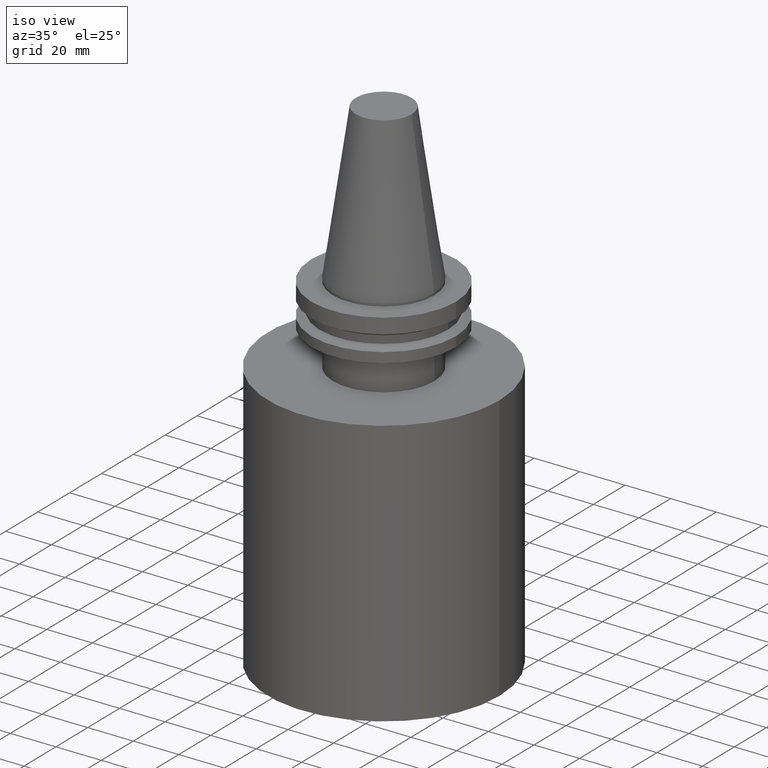
[diagram: clean part render]
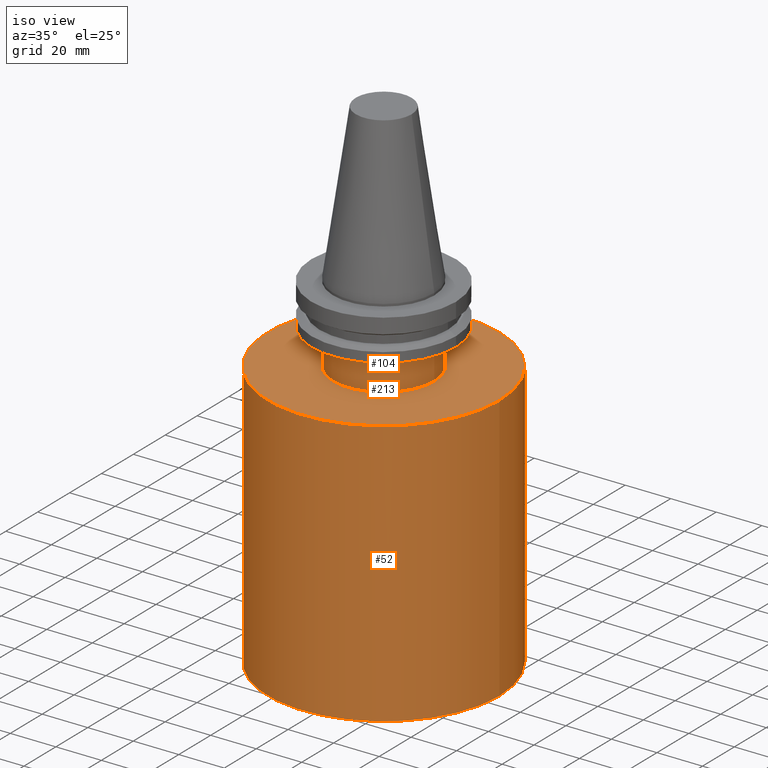
[diagram: same view with one multi-face feature highlighted, each face labeled with its STEP entity id]
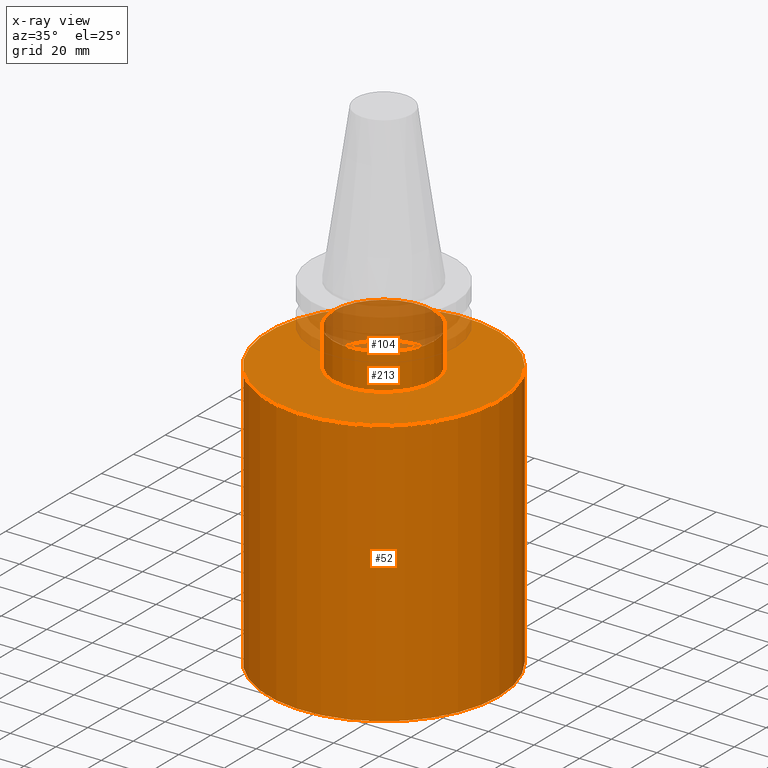
[diagram: x-ray of the same camera — body ghosted, the whole feature saturated]
A machine part, iso view. The highlighted faces form ONE feature: a stepped (counterbored) hole: 2 coaxial cylindrical walls of radii 22.225 -> 50.8 mm joined by 1 annular planar shoulder face(s). The faces share edges in the B-rep.
The next image is the same camera in x-ray: the body ghosted and the whole hole feature saturated, so the bore chain is visible through the body.
Their STEP definitions:
[1] entity #52 (Cylinder):
#20 = DIRECTION ( 'NONE',  ( 1.000000000000000000, 0.000000000000000000, 0.000000000000000000 ) ) ;
#38 = CYLINDRICAL_SURFACE ( 'NONE', #169, 50.79999999999999005 ) ;
#52 = ADVANCED_FACE ( 'NONE', ( #193, #318 ), #38, .T. ) ;
#65 = CIRCLE ( 'NONE', #297, 50.79999999999998295 ) ;
#84 = DIRECTION ( 'NONE',  ( 1.000000000000000000, 0.000000000000000000, 0.000000000000000000 ) ) ;
#86 = CIRCLE ( 'NONE', #242, 50.79999999999999716 ) ;
#96 = EDGE_LOOP ( 'NONE', ( #370 ) ) ;
#98 = ORIENTED_EDGE ( 'NONE', *, *, #326, .T. ) ;
#99 = CARTESIAN_POINT ( 'NONE',  ( 50.79999999999999716, 0.000000000000000000, -152.4000000000000057 ) ) ;
#102 = VERTEX_POINT ( 'NONE', #261 ) ;
#119 = DIRECTION ( 'NONE',  ( -0.000000000000000000, -0.000000000000000000, 1.000000000000000000 ) ) ;
#151 = CARTESIAN_POINT ( 'NONE',  ( 0.000000000000000000, 0.000000000000000000, -152.4000000000000057 ) ) ;
#160 = CARTESIAN_POINT ( 'NONE',  ( 0.000000000000000000, 0.000000000000000000, 0.000000000000000000 ) ) ;
#169 = AXIS2_PLACEMENT_3D ( 'NONE', #160, #292, #321 ) ;
#184 = VERTEX_POINT ( 'NONE', #99 ) ;
#193 = FACE_OUTER_BOUND ( 'NONE', #96, .T. ) ;
#242 = AXIS2_PLACEMENT_3D ( 'NONE', #151, #243, #20 ) ;
#243 = DIRECTION ( 'NONE',  ( -0.000000000000000000, -0.000000000000000000, 1.000000000000000000 ) ) ;
#256 = EDGE_LOOP ( 'NONE', ( #98 ) ) ;
#261 = CARTESIAN_POINT ( 'NONE',  ( 50.79999999999998295, 0.000000000000000000, -35.04999999999999716 ) ) ;
#292 = DIRECTION ( 'NONE',  ( -0.000000000000000000, -0.000000000000000000, 1.000000000000000000 ) ) ;
#297 = AXIS2_PLACEMENT_3D ( 'NONE', #365, #119, #84 ) ;
#318 = FACE_OUTER_BOUND ( 'NONE', #256, .T. ) ;
#321 = DIRECTION ( 'NONE',  ( 1.000000000000000000, 0.000000000000000000, 0.000000000000000000 ) ) ;
#326 = EDGE_CURVE ( 'NONE', #184, #184, #86, .T. ) ;
#331 = EDGE_CURVE ( 'NONE', #102, #102, #65, .T. ) ;
#365 = CARTESIAN_POINT ( 'NONE',  ( 0.000000000000000000, 0.000000000000000000, -35.04999999999999716 ) ) ;
#370 = ORIENTED_EDGE ( 'NONE', *, *, #331, .F. ) ;
[2] entity #104 (Cylinder):
#26 = DIRECTION ( 'NONE',  ( 1.000000000000000000, 0.000000000000000000, 0.000000000000000000 ) ) ;
#35 = CARTESIAN_POINT ( 'NONE',  ( 22.22500000000000142, 0.000000000000000000, -19.04999999999999716 ) ) ;
#45 = DIRECTION ( 'NONE',  ( 1.000000000000000000, 0.000000000000000000, 0.000000000000000000 ) ) ;
#47 = CARTESIAN_POINT ( 'NONE',  ( 0.000000000000000000, 0.000000000000000000, -19.04999999999999716 ) ) ;
#71 = ORIENTED_EDGE ( 'NONE', *, *, #263, .F. ) ;
#94 = CIRCLE ( 'NONE', #258, 22.22499999999999787 ) ;
#104 = ADVANCED_FACE ( 'NONE', ( #239, #174 ), #235, .T. ) ;
#110 = DIRECTION ( 'NONE',  ( -0.000000000000000000, -0.000000000000000000, 1.000000000000000000 ) ) ;
#116 = DIRECTION ( 'NONE',  ( -0.000000000000000000, -0.000000000000000000, 1.000000000000000000 ) ) ;
#130 = CARTESIAN_POINT ( 'NONE',  ( 22.22499999999999787, 0.000000000000000000, -35.04999999999999716 ) ) ;
#131 = EDGE_LOOP ( 'NONE', ( #71 ) ) ;
#174 = FACE_OUTER_BOUND ( 'NONE', #342, .T. ) ;
#235 = CYLINDRICAL_SURFACE ( 'NONE', #341, 22.22500000000000142 ) ;
#239 = FACE_OUTER_BOUND ( 'NONE', #131, .T. ) ;
#254 = EDGE_CURVE ( 'NONE', #317, #317, #94, .T. ) ;
#258 = AXIS2_PLACEMENT_3D ( 'NONE', #324, #325, #383 ) ;
#263 = EDGE_CURVE ( 'NONE', #373, #373, #307, .T. ) ;
#269 = AXIS2_PLACEMENT_3D ( 'NONE', #47, #116, #26 ) ;
#307 = CIRCLE ( 'NONE', #269, 22.22500000000000142 ) ;
#314 = ORIENTED_EDGE ( 'NONE', *, *, #254, .T. ) ;
#317 = VERTEX_POINT ( 'NONE', #130 ) ;
#324 = CARTESIAN_POINT ( 'NONE',  ( 0.000000000000000000, 0.000000000000000000, -35.04999999999999716 ) ) ;
#325 = DIRECTION ( 'NONE',  ( -0.000000000000000000, -0.000000000000000000, 1.000000000000000000 ) ) ;
#341 = AXIS2_PLACEMENT_3D ( 'NONE', #357, #110, #45 ) ;
#342 = EDGE_LOOP ( 'NONE', ( #314 ) ) ;
#357 = CARTESIAN_POINT ( 'NONE',  ( 0.000000000000000000, 0.000000000000000000, 68.25000000000000000 ) ) ;
#373 = VERTEX_POINT ( 'NONE', #35 ) ;
#383 = DIRECTION ( 'NONE',  ( 1.000000000000000000, 0.000000000000000000, 0.000000000000000000 ) ) ;
[3] entity #213 (Plane):
#43 = DIRECTION ( 'NONE',  ( -1.000000000000000000, 0.000000000000000000, -0.000000000000000000 ) ) ;
#65 = CIRCLE ( 'NONE', #297, 50.79999999999998295 ) ;
#84 = DIRECTION ( 'NONE',  ( 1.000000000000000000, 0.000000000000000000, 0.000000000000000000 ) ) ;
#94 = CIRCLE ( 'NONE', #258, 22.22499999999999787 ) ;
#102 = VERTEX_POINT ( 'NONE', #261 ) ;
#119 = DIRECTION ( 'NONE',  ( -0.000000000000000000, -0.000000000000000000, 1.000000000000000000 ) ) ;
#124 = ORIENTED_EDGE ( 'NONE', *, *, #331, .T. ) ;
#130 = CARTESIAN_POINT ( 'NONE',  ( 22.22499999999999787, 0.000000000000000000, -35.04999999999999716 ) ) ;
#162 = AXIS2_PLACEMENT_3D ( 'NONE', #230, #322, #43 ) ;
#213 = ADVANCED_FACE ( 'NONE', ( #353, #379 ), #351, .F. ) ;
#230 = CARTESIAN_POINT ( 'NONE',  ( 0.000000000000000000, 50.79999999999998295, -35.04999999999999716 ) ) ;
#254 = EDGE_CURVE ( 'NONE', #317, #317, #94, .T. ) ;
#258 = AXIS2_PLACEMENT_3D ( 'NONE', #324, #325, #383 ) ;
#259 = EDGE_LOOP ( 'NONE', ( #124 ) ) ;
#261 = CARTESIAN_POINT ( 'NONE',  ( 50.79999999999998295, 0.000000000000000000, -35.04999999999999716 ) ) ;
#286 = EDGE_LOOP ( 'NONE', ( #288 ) ) ;
#288 = ORIENTED_EDGE ( 'NONE', *, *, #254, .F. ) ;
#297 = AXIS2_PLACEMENT_3D ( 'NONE', #365, #119, #84 ) ;
#317 = VERTEX_POINT ( 'NONE', #130 ) ;
#322 = DIRECTION ( 'NONE',  ( 0.000000000000000000, 0.000000000000000000, -1.000000000000000000 ) ) ;
#324 = CARTESIAN_POINT ( 'NONE',  ( 0.000000000000000000, 0.000000000000000000, -35.04999999999999716 ) ) ;
#325 = DIRECTION ( 'NONE',  ( -0.000000000000000000, -0.000000000000000000, 1.000000000000000000 ) ) ;
#331 = EDGE_CURVE ( 'NONE', #102, #102, #65, .T. ) ;
#351 = PLANE ( 'NONE',  #162 ) ;
#353 = FACE_BOUND ( 'NONE', #286, .T. ) ;
#365 = CARTESIAN_POINT ( 'NONE',  ( 0.000000000000000000, 0.000000000000000000, -35.04999999999999716 ) ) ;
#379 = FACE_OUTER_BOUND ( 'NONE', #259, .T. ) ;
#383 = DIRECTION ( 'NONE',  ( 1.000000000000000000, 0.000000000000000000, 0.000000000000000000 ) ) ;